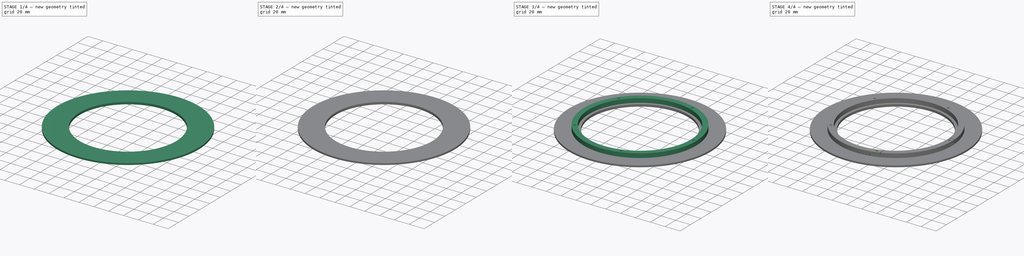
[diagram: build sequence overview — one tinted view per stage of 4, left to right]
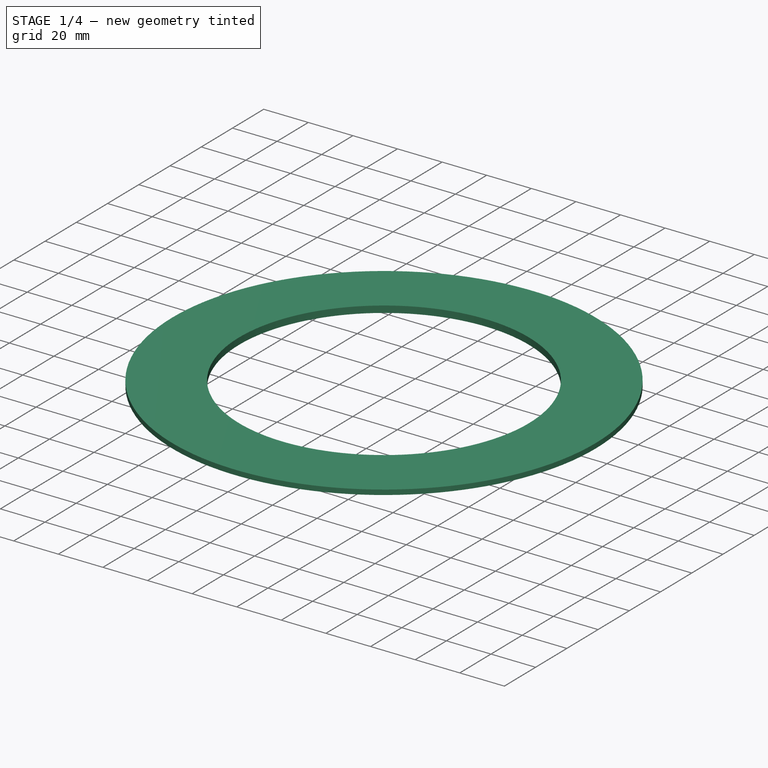
[diagram: stage 1 of 4 — iso view after this stage's code; geometry added in this stage tinted green]
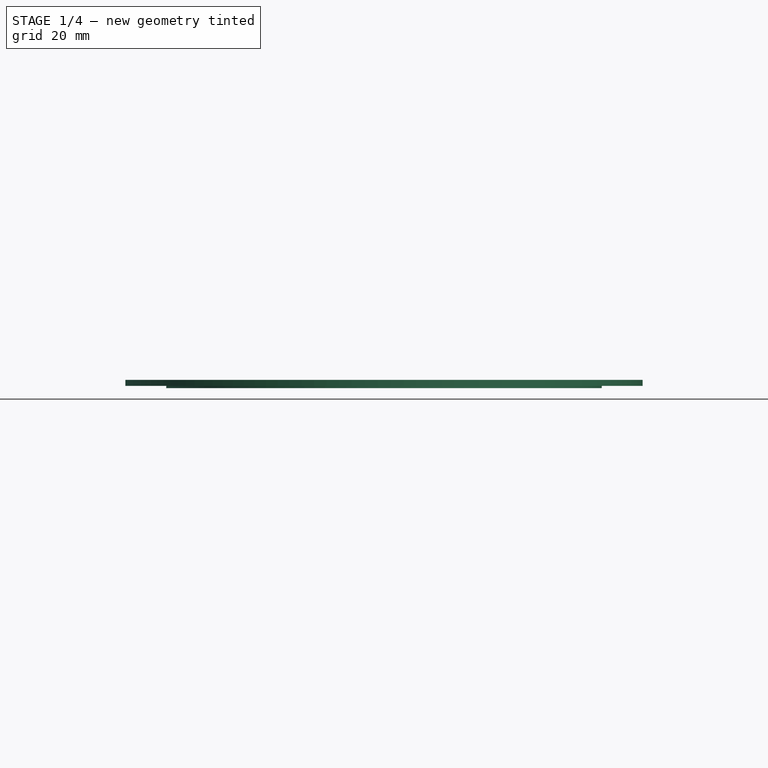
[diagram: stage 1 of 4 — front view after this stage's code; geometry added in this stage tinted green]
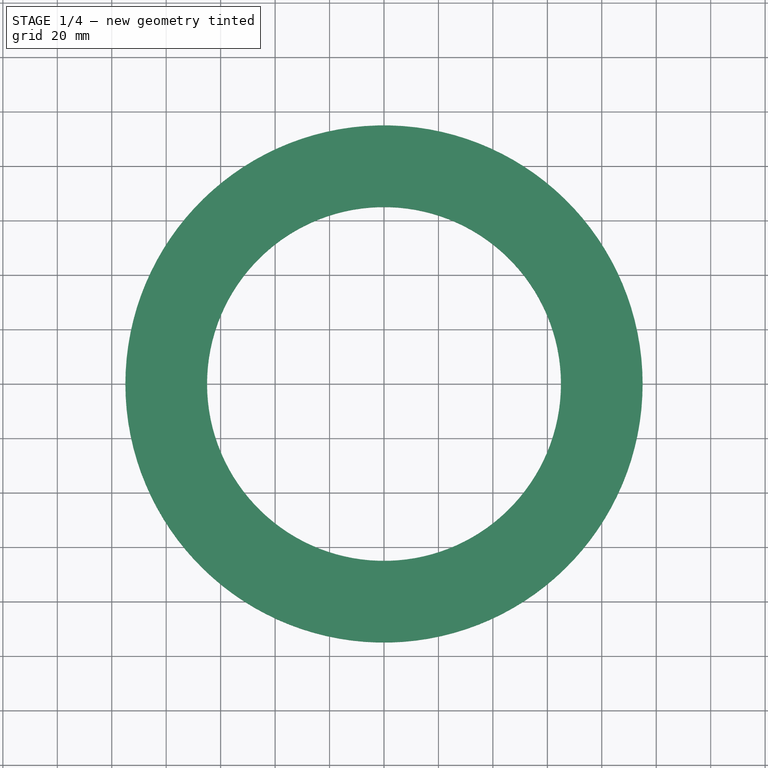
[diagram: stage 1 of 4 — top view after this stage's code; geometry added in this stage tinted green]
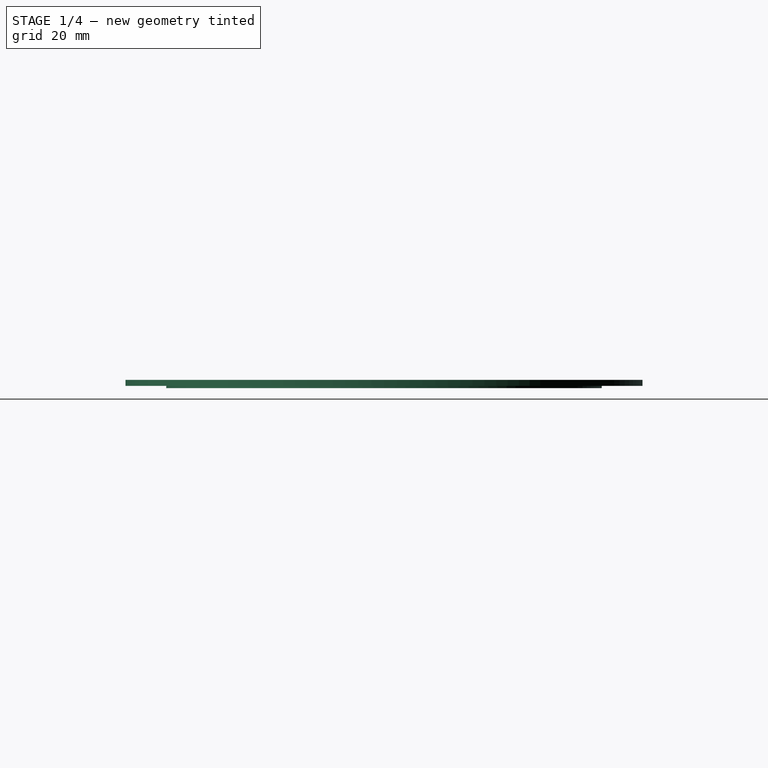
[diagram: stage 1 of 4 — right view after this stage's code; geometry added in this stage tinted green]
FCSTD DOCUMENT  (FreeCAD 1.0R39109 (Git))
Label: chainring-guard
License: All rights reserved
LicenseURL: https://en.wikipedia.org/wiki/All_rights_reserved
objects: Sketcher::SketchObject×12, PartDesign::Pocket×6, PartDesign::Pad×4, PartDesign::PolarPattern×2, PartDesign::Body×2, App::VarSet×1
note: 60 computed .brp shape members not serialized (recipe doc carries the construction recipe); baked Part::Feature solids carry a one-line shape summary decoded from their .brp

FEATURE [App::VarSet] VarSet
  Base_AdditiveDiameter = 6
  Base_BoltHoleDiameter = 3
  Base_BoltPadInner = 0
  Base_ChainOffsetThickness = 0.8
  Base_ChainPlateOffset = 30
  Base_ChainPlusTolerance = 7.8
  Base_DistanceToHole = 72
  Base_InnerDiameter = 130
  Base_OuterDiameter = 190
  Base_SproketThickness = 2.2
  Base_Thickness = 2.2
  SliceTolerance = 0.6
FEATURE [Sketcher::SketchObject] Sketch
  ArcFitTolerance = 1e-06
  AttachmentSupport = -> [XY_Plane]
  FullyConstrained = true
  MakeInternals = false
  MapMode = 5
  expr: Constraints[1] = VarSet.Base_OuterDiameter
  sketch-geometry (1):
    g0: Circle CenterX=0 CenterY=0 CenterZ=0 NormalX=0 NormalY=0 NormalZ=1 AngleXU=0 Radius=95
  constraints (2):
    c: Coincident(g0,g-1)
    c: Diameter(g0) = 190
FEATURE [PartDesign::Pad] Pad
  Direction = (0,0,1)
  Length = 2.2
  Length2 = 10
  Profile = -> Sketch
  ReferenceAxis = -> Sketch [N_Axis]
  Refine = true
  Suppressed = false
  Type = 0
  expr: Length = VarSet.Base_Thickness
FEATURE [PartDesign::Body] Body001  label="FrameFacingPart"
  AllowCompound = false
  Group = -> [Sketch004,Pad001,Sketch005,Pocket002,Sketch006,Sketch009,Pad002,Sketch007,Sketch010,Pocket003,PolarPattern001,Sketch011,Pocket004,Sketch012,Pocket005]
  Origin = -> Origin001
  Placement = pos=(0,0,20) rot=(0,0,1;0rad)
  Tip = -> Pocket005
FEATURE [Sketcher::SketchObject] Sketch013
  ArcFitTolerance = 1e-06
  AttachmentSupport = -> [Pad]
  FullyConstrained = true
  MakeInternals = false
  MapMode = 5
  Placement = pos=(0,0,0) rot=(1,0,0;3.14159rad)
  expr: Constraints[1] = VarSet.Base_OuterDiameter - VarSet.Base_ChainPlateOffset
  sketch-geometry (1):
    g0: Circle CenterX=0 CenterY=0 CenterZ=0 NormalX=0 NormalY=0 NormalZ=1 AngleXU=0 Radius=80
  constraints (2):
    c: Coincident(g0,g-1)
    c: Diameter(g0) = 160
FEATURE [PartDesign::Pad] Pad003
  BaseFeature = -> Pad
  Direction = (0,0,-1)
  Length = 0.8
  Length2 = 10
  Profile = -> Sketch013
  ReferenceAxis = -> Sketch013 [N_Axis]
  Refine = true
  Suppressed = false
  Type = 0
  expr: Length = VarSet.Base_ChainOffsetThickness
FEATURE [PartDesign::Pocket] Pocket
  BaseFeature = -> Pad003
  Direction = (0,0,-1)
  Length = 6.6
  Length2 = 5
  Profile = -> Sketch001
  ReferenceAxis = -> Sketch001 [N_Axis]
  Refine = true
  Suppressed = false
  Type = 0
  expr: Length = VarSet.Base_Thickness * 3
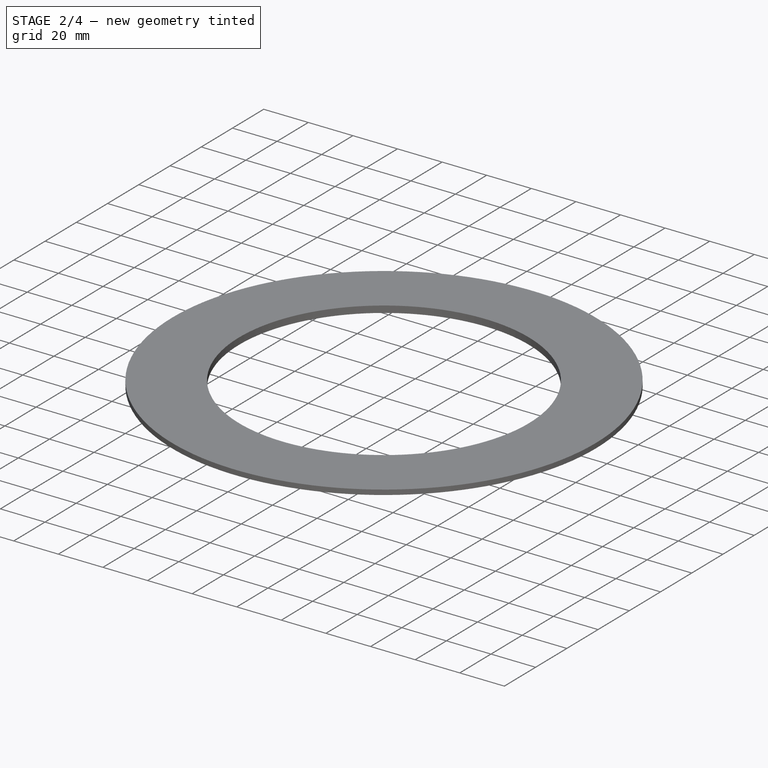
[diagram: stage 2 of 4 — iso view after this stage's code; geometry added in this stage tinted green]
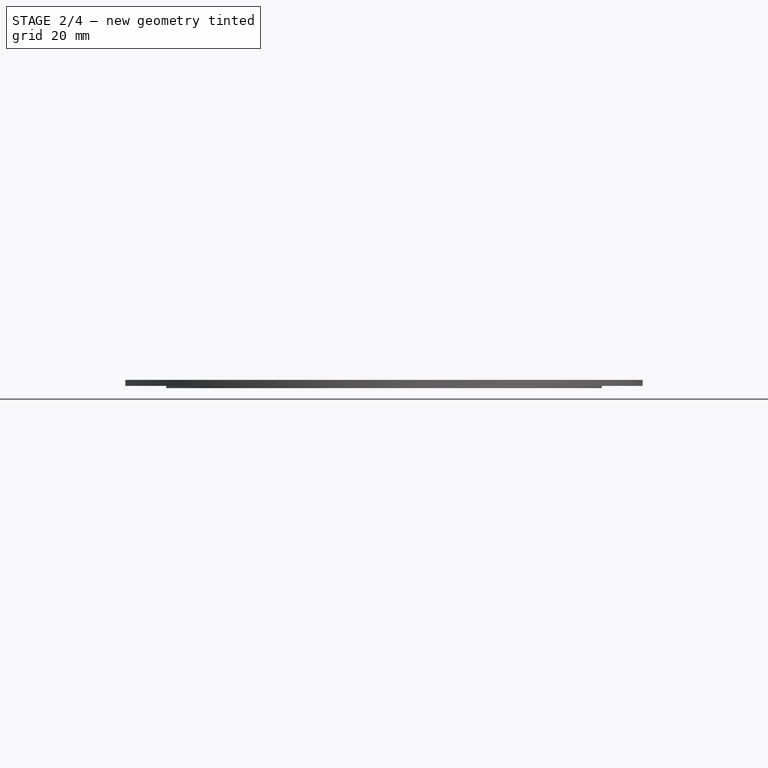
[diagram: stage 2 of 4 — front view after this stage's code; geometry added in this stage tinted green]
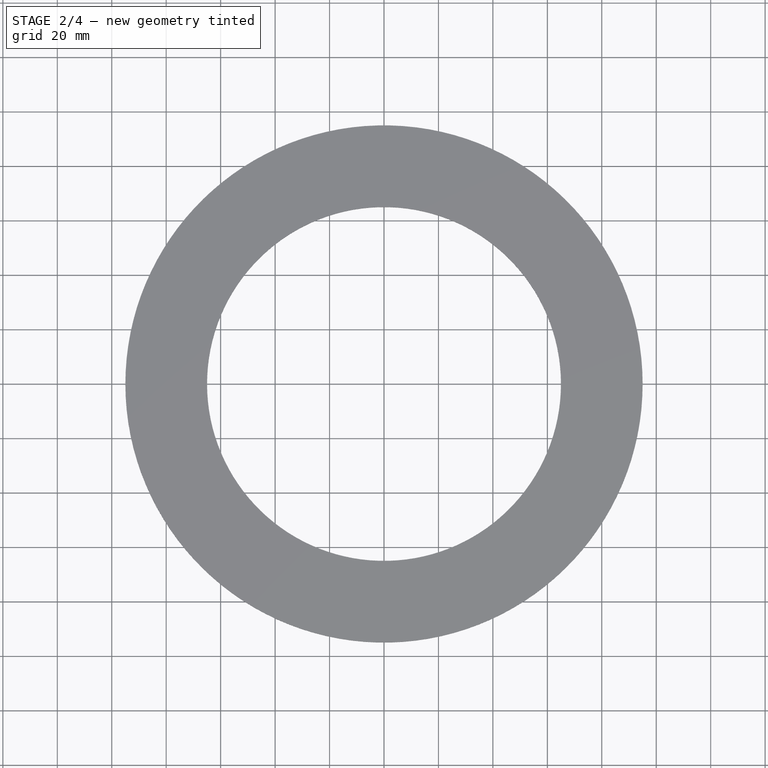
[diagram: stage 2 of 4 — top view after this stage's code; geometry added in this stage tinted green]
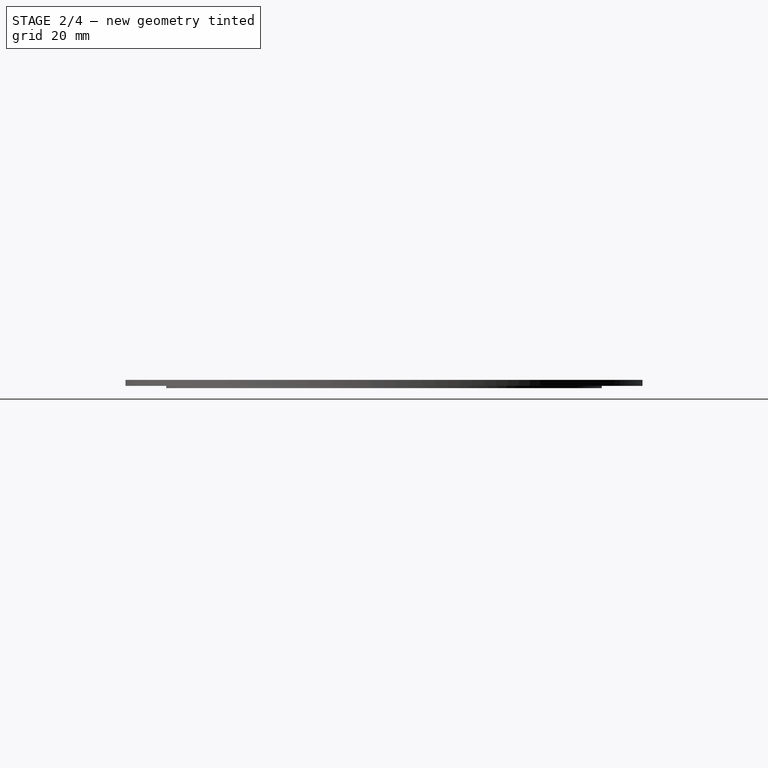
[diagram: stage 2 of 4 — right view after this stage's code; geometry added in this stage tinted green]
FEATURE [Sketcher::SketchObject] Sketch001
  ArcFitTolerance = 1e-06
  AttachmentSupport = -> [Pad]
  FullyConstrained = true
  MakeInternals = false
  MapMode = 5
  Placement = pos=(0,0,2.2) rot=(0,0,1;0rad)
  expr: Constraints[1] = VarSet.Base_InnerDiameter
  sketch-geometry (1):
    g0: Circle CenterX=0 CenterY=0 CenterZ=0 NormalX=0 NormalY=0 NormalZ=1 AngleXU=0 Radius=65
  constraints (2):
    c: Coincident(g0,g-1)
    c: Diameter(g0) = 130
FEATURE [Sketcher::SketchObject] Sketch004
  ArcFitTolerance = 1e-06
  AttachmentSupport = -> [XY_Plane001]
  FullyConstrained = true
  MakeInternals = false
  MapMode = 5
  expr: Constraints[1] = VarSet.Base_OuterDiameter
  sketch-geometry (1):
    g0: Circle CenterX=0 CenterY=0 CenterZ=0 NormalX=0 NormalY=0 NormalZ=1 AngleXU=0 Radius=95
  constraints (2):
    c: Coincident(g0,g-1)
    c: Diameter(g0) = 190
FEATURE [PartDesign::Pad] Pad001
  Direction = (0,0,1)
  Length = 2.2
  Length2 = 10
  Profile = -> Sketch004
  ReferenceAxis = -> Sketch004 [N_Axis]
  Refine = true
  Suppressed = false
  Type = 0
  expr: Length = VarSet.Base_Thickness
FEATURE [Sketcher::SketchObject] Sketch005
  ArcFitTolerance = 1e-06
  AttachmentSupport = -> [Pad001]
  FullyConstrained = true
  MakeInternals = false
  MapMode = 5
  Placement = pos=(0,0,2.2) rot=(0,0,1;0rad)
  expr: Constraints[1] = VarSet.Base_InnerDiameter
  sketch-geometry (1):
    g0: Circle CenterX=0 CenterY=0 CenterZ=0 NormalX=0 NormalY=0 NormalZ=1 AngleXU=0 Radius=65
  constraints (2):
    c: Coincident(g0,g-1)
    c: Diameter(g0) = 130
FEATURE [PartDesign::Pocket] Pocket002
  BaseFeature = -> Pad001
  Direction = (0,0,-1)
  Length = 6.6
  Length2 = 5
  Profile = -> Sketch005
  ReferenceAxis = -> Sketch005 [N_Axis]
  Refine = true
  Suppressed = false
  Type = 0
  expr: Length = VarSet.Base_Thickness * 3
FEATURE [Sketcher::SketchObject] Sketch003
  ArcFitTolerance = 1e-06
  AttachmentSupport = -> [Pocket]
  FullyConstrained = true
  MakeInternals = false
  MapMode = 5
  Placement = pos=(0,0,2.2) rot=(0,0,1;0rad)
  expr: Constraints[2] = VarSet.Base_BoltHoleDiameter
  expr: Constraints[3] = VarSet.Base_DistanceToHole * 2
  sketch-geometry (2):
    g0: Circle [constr] CenterX=0 CenterY=0 CenterZ=0 NormalX=0 NormalY=0 NormalZ=1 AngleXU=0 Radius=72
    g1: Circle CenterX=72 CenterY=0 CenterZ=0 NormalX=0 NormalY=0 NormalZ=1 AngleXU=0 Radius=1.5
  constraints (5):
    c: Coincident(g0,g-1)
    c: PointOnObject(g1,g0)
    c: Diameter(g1) = 3
    c: Diameter(g0) = 144
    c: PointOnObject(g1,g-1)
FEATURE [PartDesign::Pocket] Pocket001
  BaseFeature = -> Pocket
  Direction = (0,0,-1)
  Length = 5
  Length2 = 5
  Profile = -> Sketch003
  ReferenceAxis = -> Sketch003 [N_Axis]
  Refine = true
  Suppressed = false
  Type = 0
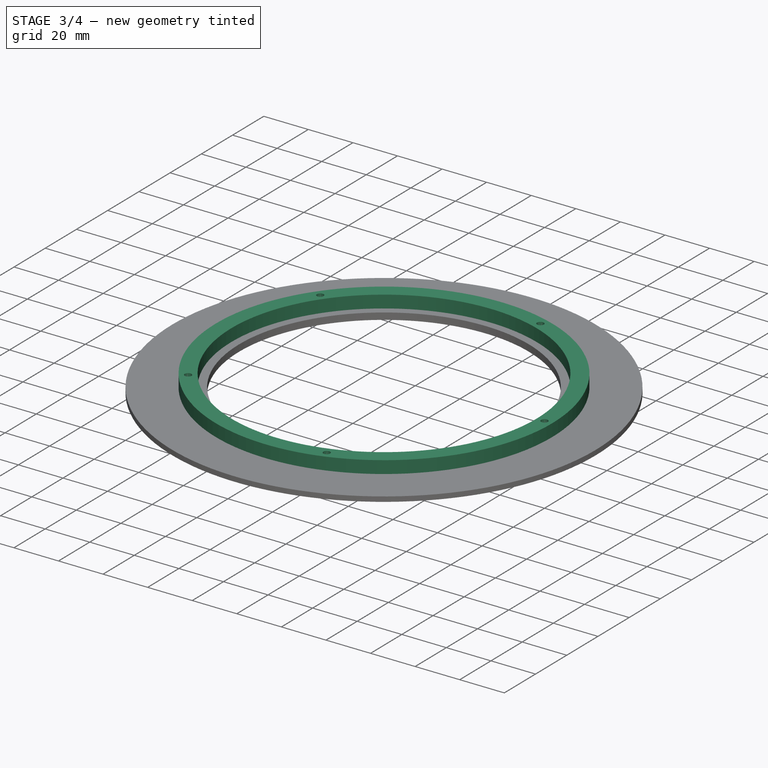
[diagram: stage 3 of 4 — iso view after this stage's code; geometry added in this stage tinted green]
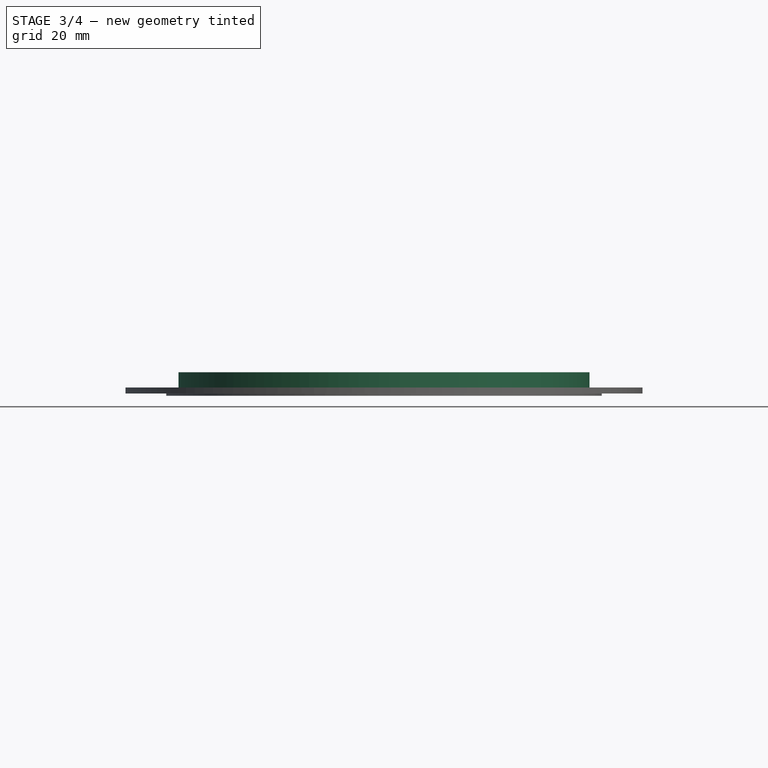
[diagram: stage 3 of 4 — front view after this stage's code; geometry added in this stage tinted green]
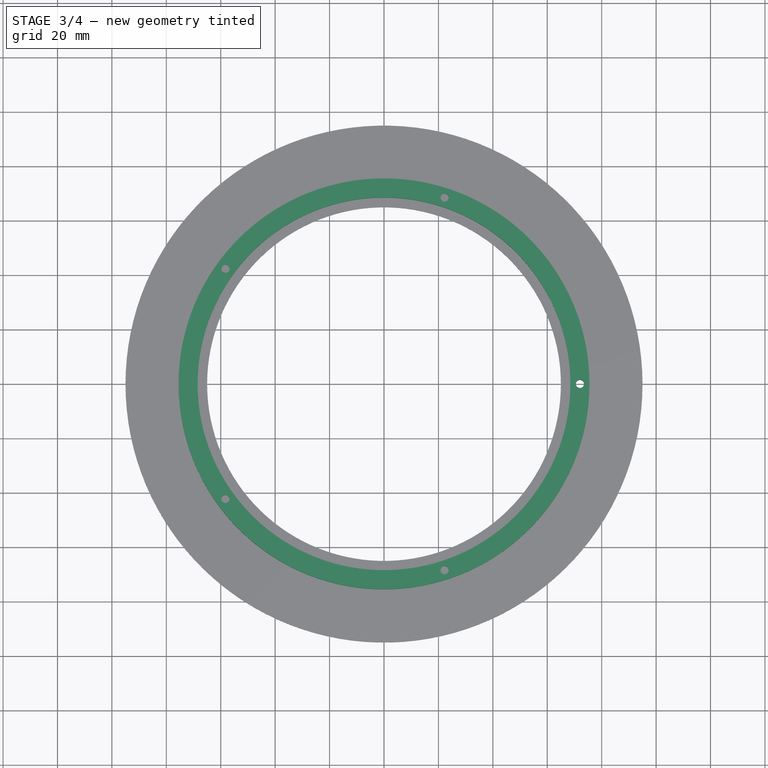
[diagram: stage 3 of 4 — top view after this stage's code; geometry added in this stage tinted green]
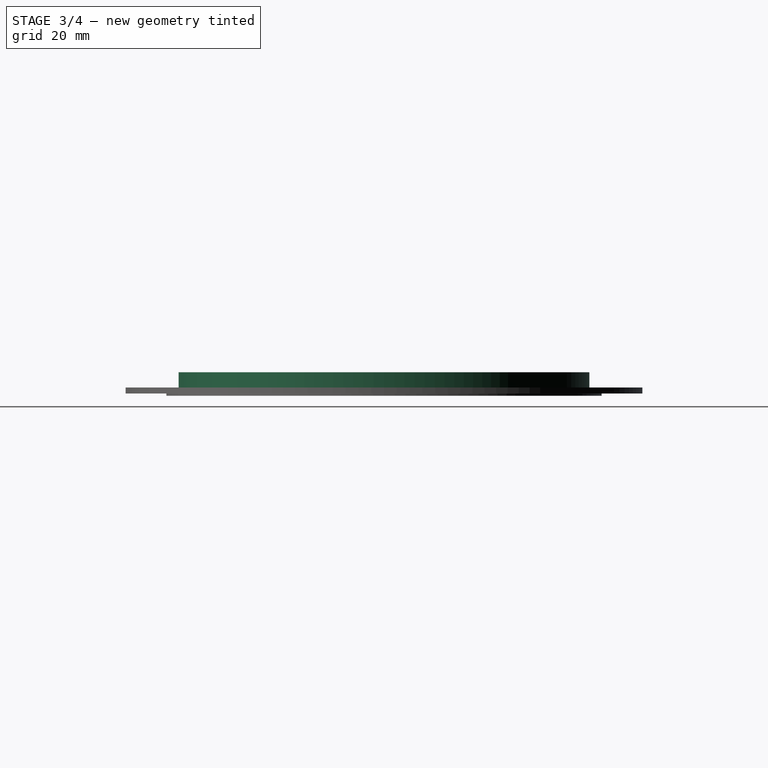
[diagram: stage 3 of 4 — right view after this stage's code; geometry added in this stage tinted green]
FEATURE [Sketcher::SketchObject] Sketch006
  ArcFitTolerance = 1e-06
  AttachmentSupport = -> [Pocket002]
  FullyConstrained = true
  MakeInternals = false
  MapMode = 5
  Placement = pos=(0,0,2.2) rot=(0,0,1;0rad)
FEATURE [Sketcher::SketchObject] Sketch007
  ArcFitTolerance = 1e-06
  AttachmentSupport = -> [Pocket002]
  FullyConstrained = true
  MakeInternals = false
  MapMode = 5
  Placement = pos=(0,0,2.2) rot=(0,0,1;0rad)
  expr: Constraints[2] = VarSet.Base_BoltHoleDiameter
  expr: Constraints[3] = VarSet.Base_DistanceToHole * 2
  sketch-geometry (2):
    g0: Circle [constr] CenterX=0 CenterY=0 CenterZ=0 NormalX=0 NormalY=0 NormalZ=1 AngleXU=0 Radius=72
    g1: Circle CenterX=72 CenterY=0 CenterZ=0 NormalX=0 NormalY=0 NormalZ=1 AngleXU=0 Radius=1.5
  constraints (5):
    c: Coincident(g0,g-1)
    c: PointOnObject(g1,g0)
    c: Diameter(g1) = 3
    c: Diameter(g0) = 144
    c: PointOnObject(g1,g-1)
FEATURE [Sketcher::SketchObject] Sketch009
  ArcFitTolerance = 1e-06
  AttachmentSupport = -> [Pocket002]
  ExternalGeometry = -> [Sketch007]
  FullyConstrained = true
  MakeInternals = false
  MapMode = 5
  Placement = pos=(0,0,2.2) rot=(0,0,1;0rad)
  sketch-geometry (2):
    g0: Circle CenterX=0 CenterY=0 CenterZ=0 NormalX=0 NormalY=0 NormalZ=1 AngleXU=0 Radius=68.5
    g1: Circle CenterX=0 CenterY=0 CenterZ=0 NormalX=0 NormalY=0 NormalZ=1 AngleXU=0 Radius=75.5
  constraints (4):
    c: Coincident(g0,g-1)
    c: Coincident(g1,g0)
    c: Distance(g-3,g0) = 2
    c: Distance(g-3,g1) = 2
FEATURE [PartDesign::Pad] Pad002
  BaseFeature = -> Pocket002
  Direction = (0,0,1)
  Length = 5.6
  Length2 = 10
  Profile = -> Sketch009
  ReferenceAxis = -> Sketch009 [N_Axis]
  Refine = true
  Suppressed = false
  Type = 0
  expr: Length = VarSet.Base_ChainPlusTolerance - VarSet.Base_SproketThickness
FEATURE [Sketcher::SketchObject] Sketch010
  ArcFitTolerance = 1e-06
  AttachmentSupport = -> [Pad002]
  ExternalGeometry = -> [Sketch007]
  FullyConstrained = true
  MakeInternals = false
  MapMode = 5
  Placement = pos=(0,0,0) rot=(1,0,0;3.14159rad)
  sketch-geometry (1):
    g0: Circle CenterX=72 CenterY=0 CenterZ=0 NormalX=0 NormalY=0 NormalZ=1 AngleXU=0 Radius=1.5
  constraints (2):
    c: Coincident(g0,g-3)
    c: Equal(g0,g-3)
FEATURE [PartDesign::Pocket] Pocket003
  BaseFeature = -> Pad002
  Direction = (0,0,1)
  Length = 20
  Length2 = 5
  Profile = -> Sketch010
  ReferenceAxis = -> Sketch010 [N_Axis]
  Refine = true
  Suppressed = false
  Type = 0
FEATURE [PartDesign::PolarPattern] PolarPattern001
  Angle = 360
  Axis = -> Sketch010 [N_Axis]
  BaseFeature = -> Pocket003
  Mode = 0
  Occurrences = 5
  Offset = 120
  Originals = -> [Pocket003]
  Refine = true
  Suppressed = false
  TransformMode = 0
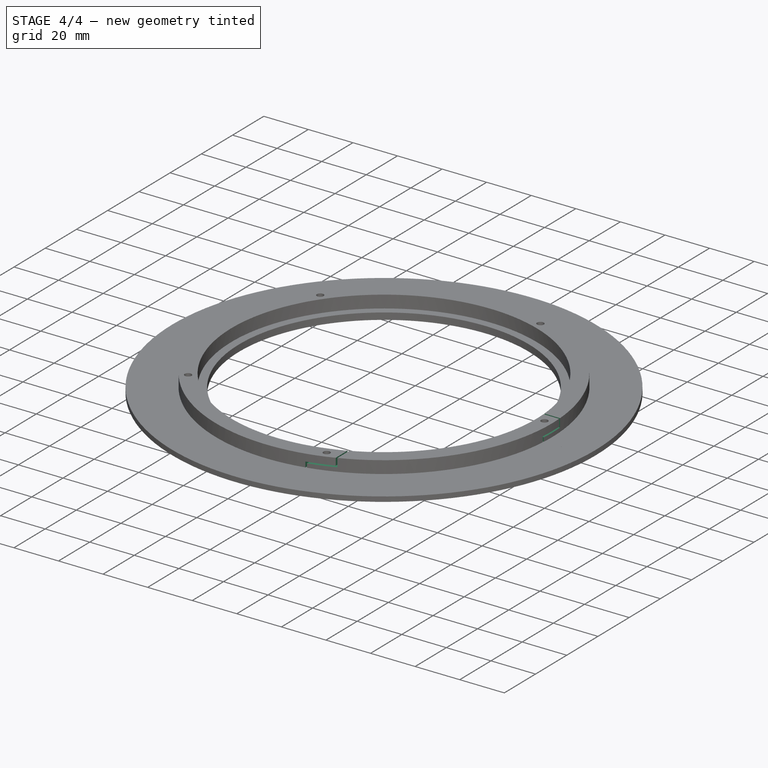
[diagram: stage 4 of 4 — iso view after this stage's code; geometry added in this stage tinted green]
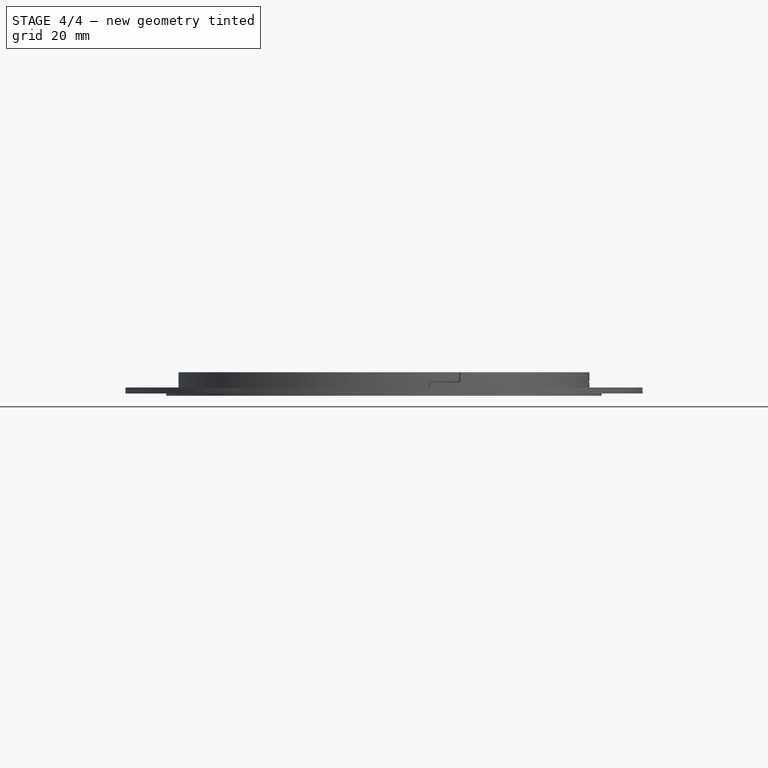
[diagram: stage 4 of 4 — front view after this stage's code; geometry added in this stage tinted green]
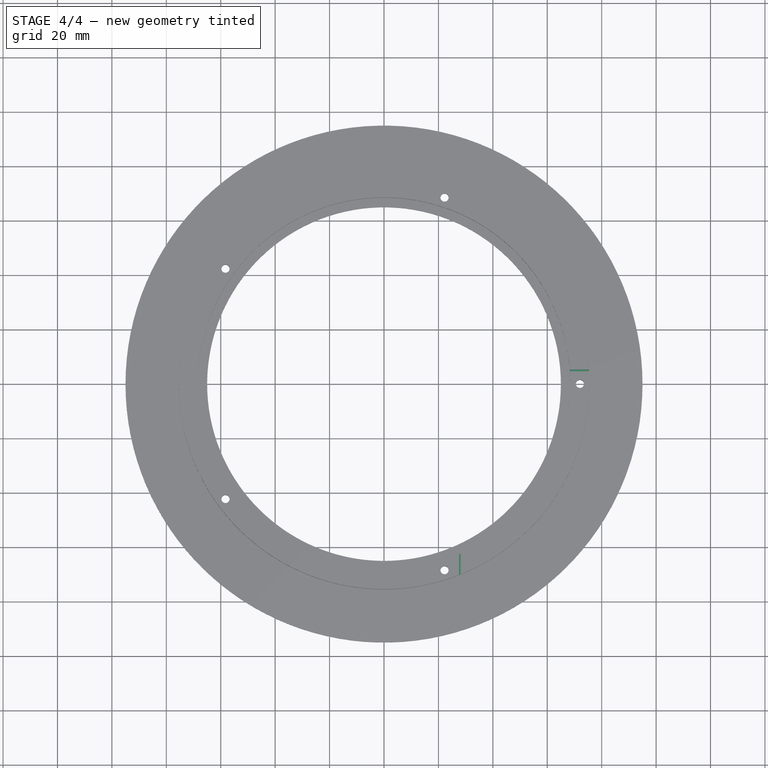
[diagram: stage 4 of 4 — top view after this stage's code; geometry added in this stage tinted green]
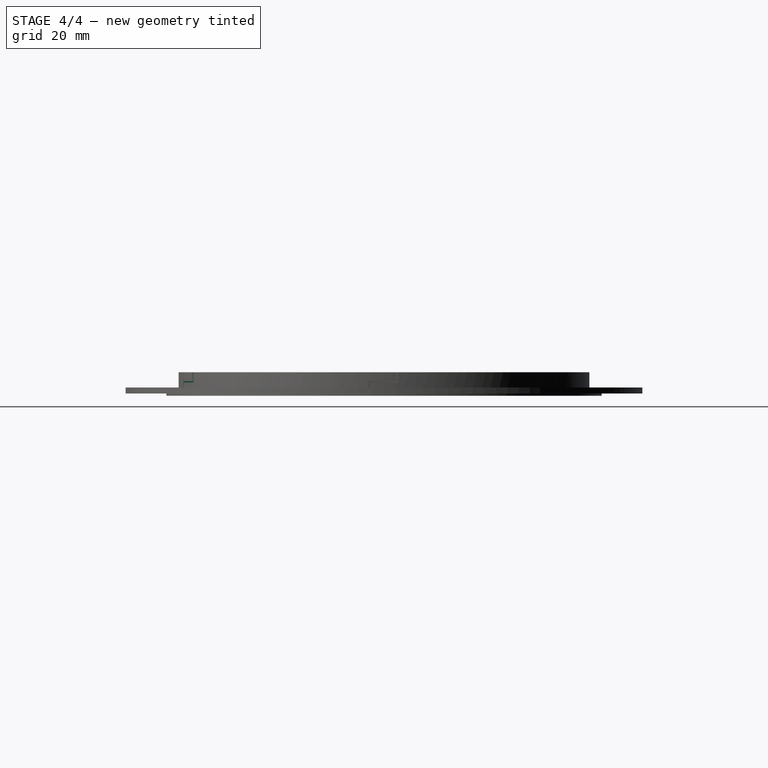
[diagram: stage 4 of 4 — right view after this stage's code; geometry added in this stage tinted green]
FEATURE [Sketcher::SketchObject] Sketch011
  ArcFitTolerance = 1e-06
  AttachmentSupport = -> [YZ_Plane001]
  ExternalGeometry = -> [PolarPattern001]
  FullyConstrained = true
  MakeInternals = false
  MapMode = 5
  Placement = pos=(0,0,0) rot=(0.57735,0.57735,0.57735;2.0944rad)
  expr: Constraints[1] = VarSet.Base_BoltHoleDiameter + VarSet.Base_Thickness
  expr: Constraints[26] = VarSet.SliceTolerance
  expr: Constraints[3] = VarSet.Base_Thickness * 2 - VarSet.SliceTolerance
  expr: Constraints[6] = VarSet.SliceTolerance
  sketch-geometry (9):
    g0: LineSegment StartX=5.2 StartY=7.8 StartZ=0 EndX=5.2 EndY=4 EndZ=0
    g1: LineSegment StartX=5.2 StartY=7.8 StartZ=0 EndX=4.6 EndY=7.8 EndZ=0
    g2: LineSegment StartX=5.2 StartY=4 StartZ=0 EndX=0 EndY=4 EndZ=0
    g3: LineSegment StartX=0 StartY=4 StartZ=0 EndX=-5.2 EndY=4 EndZ=0
    g4: LineSegment StartX=-5.2 StartY=4 StartZ=0 EndX=-5.2 EndY=0 EndZ=0
    g5: LineSegment StartX=-5.2 StartY=0 StartZ=0 EndX=-5.8 EndY=0 EndZ=0
    g6: LineSegment StartX=-5.8 StartY=0 StartZ=0 EndX=-5.8 EndY=4.6 EndZ=0
    g7: LineSegment StartX=-5.8 StartY=4.6 StartZ=0 EndX=4.6 EndY=4.6 EndZ=0
    g8: LineSegment StartX=4.6 StartY=4.6 StartZ=0 EndX=4.6 EndY=7.8 EndZ=0
  constraints (27):
    c: Vertical(g0)
    c: DistanceX(g-5,g0) = 5.2
    c: PointOnObject(g0,g-3)
    c: DistanceY(g0,g0) = 3.8
    c: Coincident(g1,g0)
    c: Horizontal(g1)
    c: DistanceX(g1,g1) = 0.6
    c: Coincident(g2,g0)
    c: PointOnObject(g2,g-5)
    c: Horizontal(g2)
    c: Coincident(g3,g2)
    c: Horizontal(g3)
    c: Equal(g2,g3)
    c: Coincident(g4,g3)
    c: Vertical(g4)
    c: PointOnObject(g4,g-4)
    c: Coincident(g5,g4)
    c: Horizontal(g5)
    c: Equal(g1,g5)
    c: Coincident(g6,g5)
    c: Vertical(g6)
    c: Coincident(g7,g6)
    c: Horizontal(g7)
    c: Coincident(g8,g7)
    c: Coincident(g8,g1)
    c: Vertical(g8)
    c: Distance(g2,g7) = 0.6
FEATURE [PartDesign::Pocket] Pocket004
  BaseFeature = -> PolarPattern001
  Direction = (-1,0,0)
  Length = 94.4
  Length2 = 5
  Profile = -> Sketch011
  ReferenceAxis = -> Sketch011 [N_Axis]
  Refine = true
  Reversed = true
  Suppressed = false
  Type = 0
  expr: Length = VarSet.Base_OuterDiameter / 2 - VarSet.SliceTolerance
FEATURE [Sketcher::SketchObject] Sketch012
  ArcFitTolerance = 1e-06
  AttachmentSupport = -> [XZ_Plane001]
  ExternalGeometry = -> [Pocket004]
  FullyConstrained = true
  MakeInternals = false
  MapMode = 5
  Placement = pos=(0,0,0) rot=(1,0,0;1.5708rad)
  expr: Constraints[15] = VarSet.SliceTolerance
  expr: Constraints[25] = VarSet.SliceTolerance
  expr: Constraints[26] = VarSet.SliceTolerance
  expr: Constraints[2] = VarSet.Base_Thickness * 2 - VarSet.SliceTolerance
  expr: Constraints[3] = VarSet.Base_Thickness * 2
  expr: Constraints[7] = VarSet.Base_Thickness * 2 - VarSet.SliceTolerance
  sketch-geometry (9):
    g0: LineSegment StartX=28.1492 StartY=7.8 StartZ=0 EndX=28.1492 EndY=4 EndZ=0
    g1: LineSegment [constr] StartX=16.9492 StartY=7.8 StartZ=0 EndX=16.9492 EndY=0 EndZ=0
    g2: LineSegment StartX=28.1492 StartY=4 StartZ=0 EndX=16.9492 EndY=4 EndZ=0
    g3: LineSegment StartX=16.9492 StartY=4 StartZ=0 EndX=16.9492 EndY=0 EndZ=0
    g4: LineSegment StartX=16.9492 StartY=0 StartZ=0 EndX=16.3492 EndY=0 EndZ=0
    g5: LineSegment StartX=16.3492 StartY=0 StartZ=0 EndX=16.3492 EndY=4.6 EndZ=0
    g6: LineSegment StartX=16.3492 StartY=4.6 StartZ=0 EndX=27.5492 EndY=4.6 EndZ=0
    g7: LineSegment StartX=27.5492 StartY=4.6 StartZ=0 EndX=27.5492 EndY=7.8 EndZ=0
    g8: LineSegment StartX=27.5492 StartY=7.8 StartZ=0 EndX=28.1492 EndY=7.8 EndZ=0
  constraints (27):
    c: PointOnObject(g0,g-3)
    c: Vertical(g0)
    c: DistanceY(g0,g0) = 3.8
    c: DistanceX(g-6,g0) = 4.4
    c: PointOnObject(g1,g-3)
    c: PointOnObject(g1,g-5)
    c: Vertical(g1)
    c: DistanceX(g1,g-6) = 3.8
    c: PointOnObject(g2,g1)
    c: Horizontal(g2)
    c: Coincident(g2,g0)
    c: Coincident(g3,g2)
    c: Coincident(g3,g1)
    c: Coincident(g4,g1)
    c: PointOnObject(g4,g-5)
    c: Distance(g4,g4) = 0.6
    c: Coincident(g5,g4)
    c: Vertical(g5)
    c: Coincident(g6,g5)
    c: Horizontal(g6)
    c: Coincident(g7,g6)
    c: PointOnObject(g7,g-3)
    c: Vertical(g7)
    c: Coincident(g8,g7)
    c: Coincident(g8,g0)
    c: DistanceX(g8,g8) = 0.6
    c: Distance(g2,g6) = 0.6
FEATURE [PartDesign::Pocket] Pocket005
  BaseFeature = -> Pocket004
  Direction = (0,1,-2e-16)
  Length = 95
  Length2 = 5
  Profile = -> Sketch012
  ReferenceAxis = -> Sketch012 [N_Axis]
  Refine = true
  Reversed = true
  Suppressed = false
  Type = 0
  expr: Length = VarSet.Base_OuterDiameter / 2
FEATURE [PartDesign::PolarPattern] PolarPattern
  Angle = 360
  Axis = -> Sketch003 [N_Axis]
  BaseFeature = -> Pocket001
  Mode = 0
  Occurrences = 5
  Offset = 120
  Originals = -> [Pocket001]
  Refine = true
  Suppressed = false
  TransformMode = 0
FEATURE [PartDesign::Body] Body  label="PedalFacingPart"
  AllowCompound = false
  Group = -> [Sketch,Pad,Pad003,Sketch013,Sketch001,Pocket,Sketch003,Pocket001,PolarPattern]
  Origin = -> Origin
  Tip = -> PolarPattern
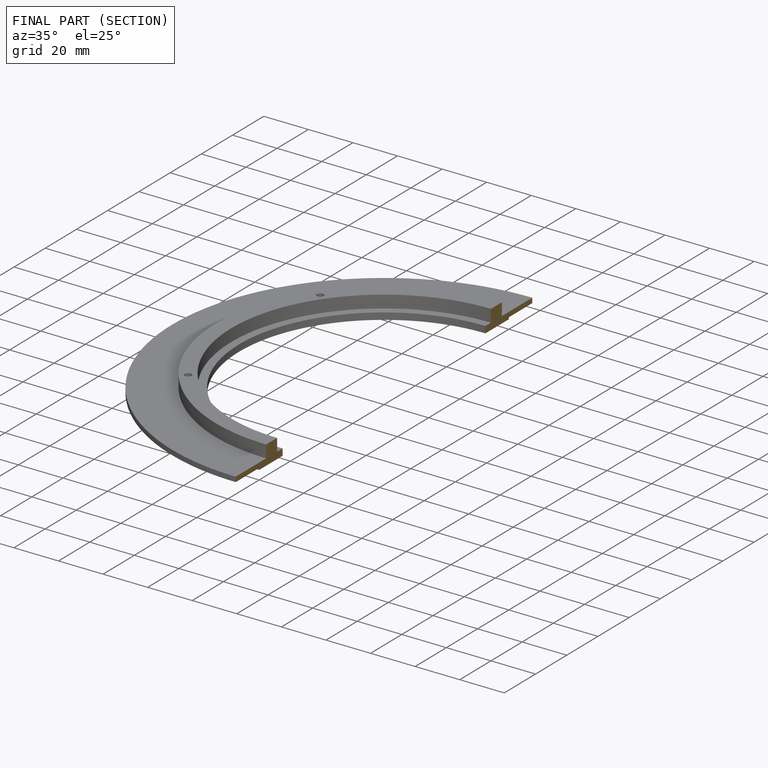
[diagram: finished part — half-section view (interior)]
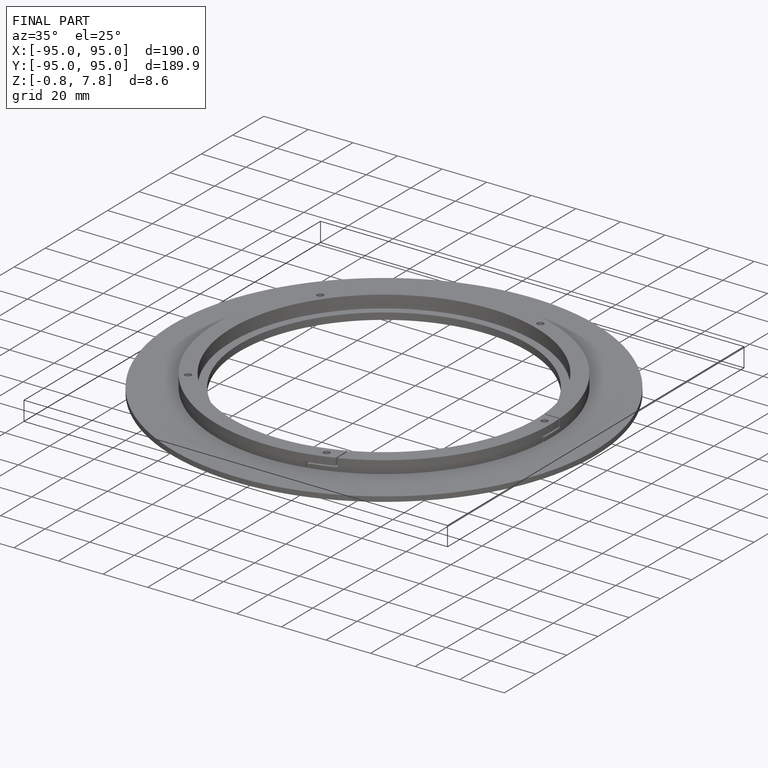
[diagram: finished part — iso view with bounding-box wireframe]
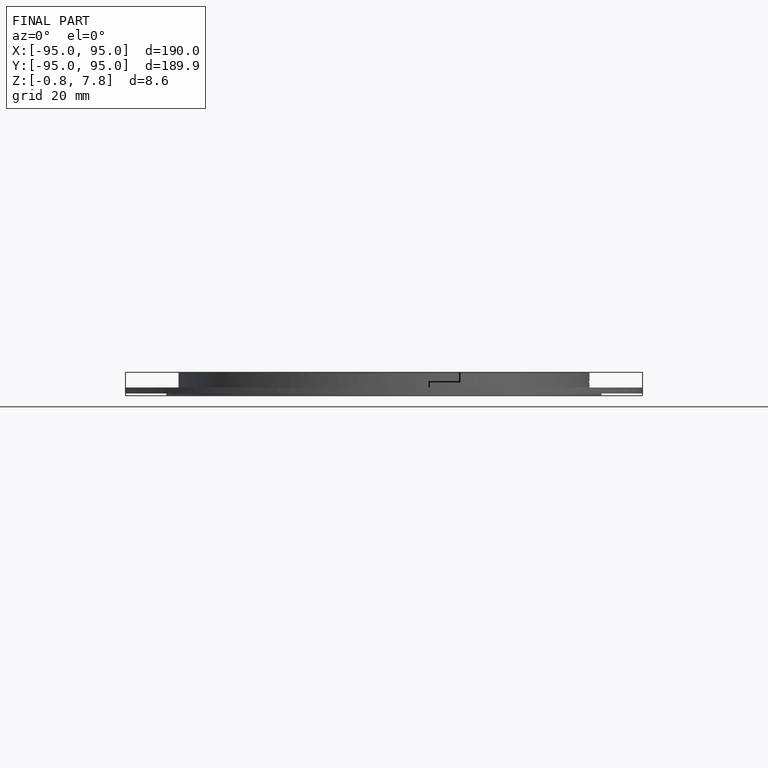
[diagram: finished part — front view with bounding-box wireframe]
